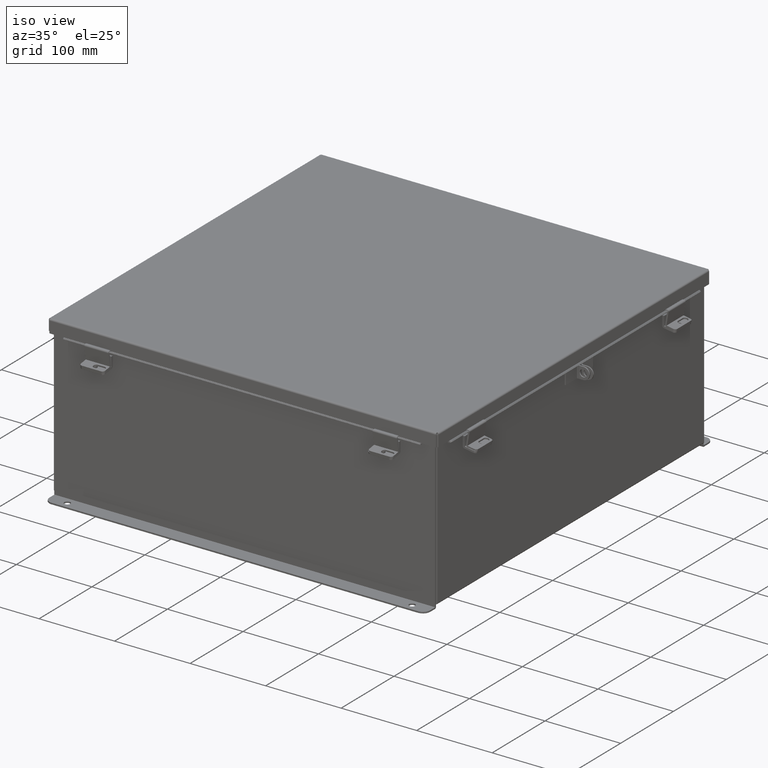
[diagram: clean part render]
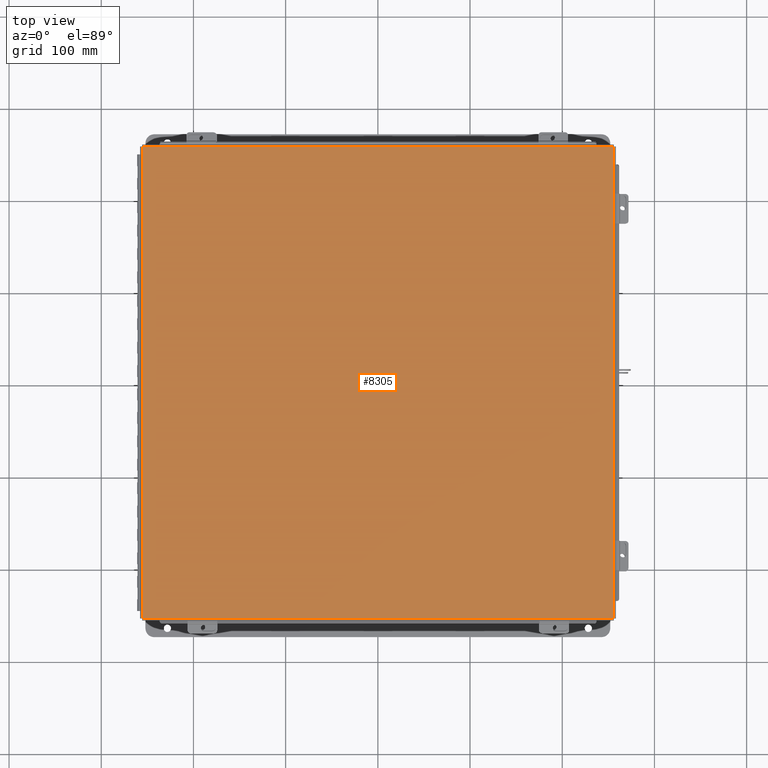
[diagram: tour spotlight — one face highlighted and labeled with its STEP entity id]
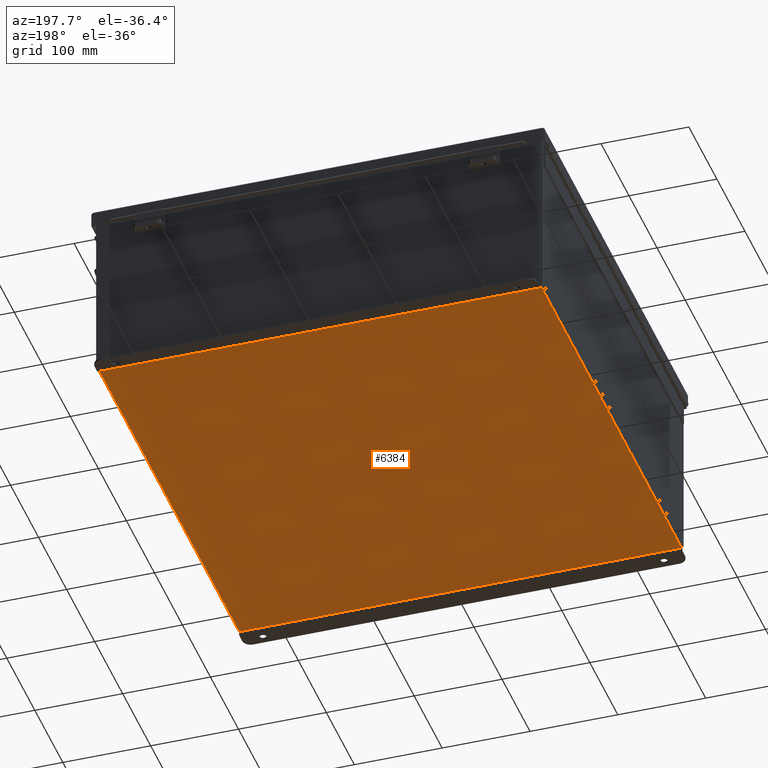
[diagram: tour spotlight — one face highlighted and labeled with its STEP entity id]
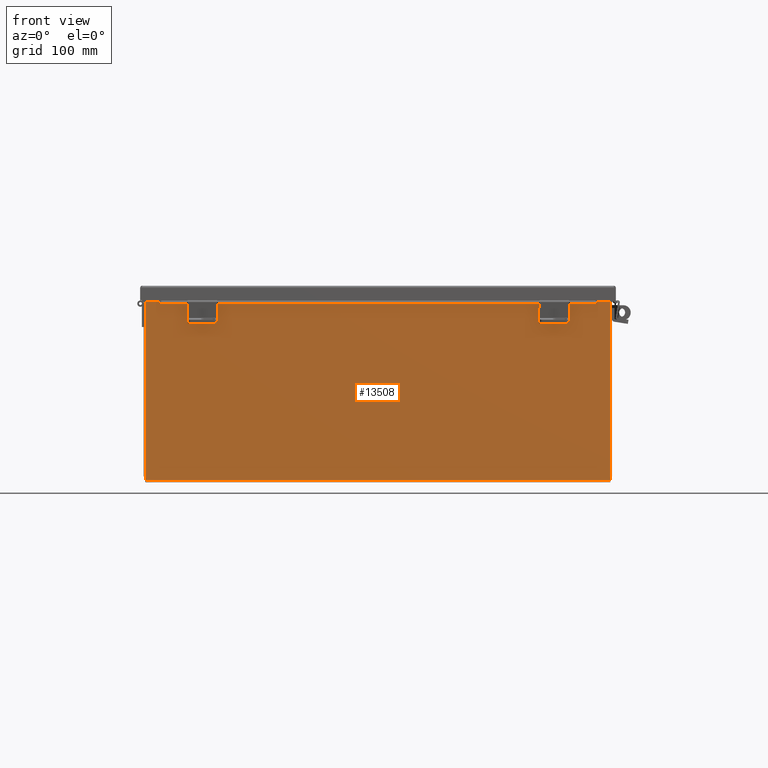
[diagram: tour spotlight — one face highlighted and labeled with its STEP entity id]
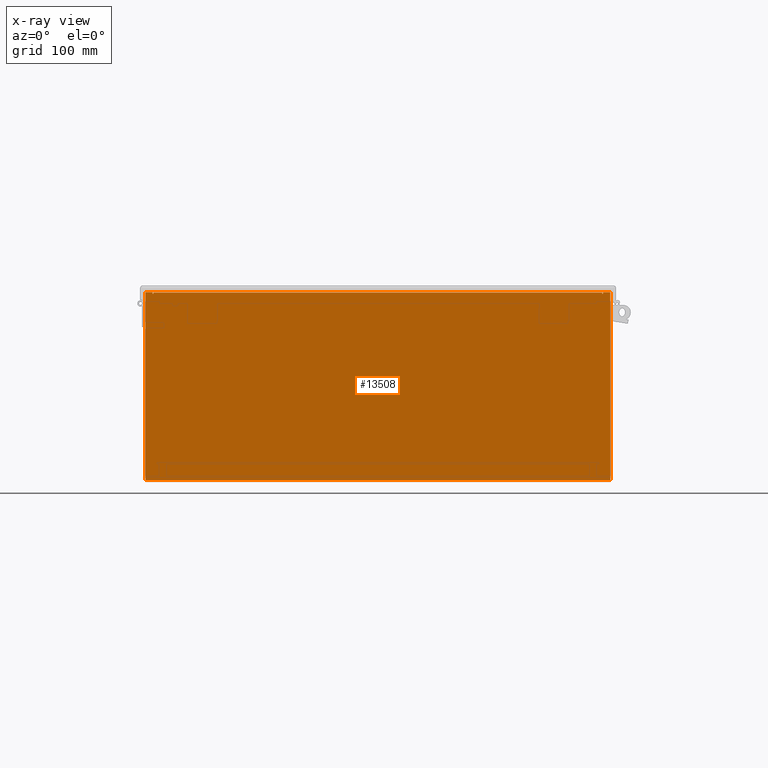
[diagram: x-ray of the same camera — body ghosted, this tour face saturated]
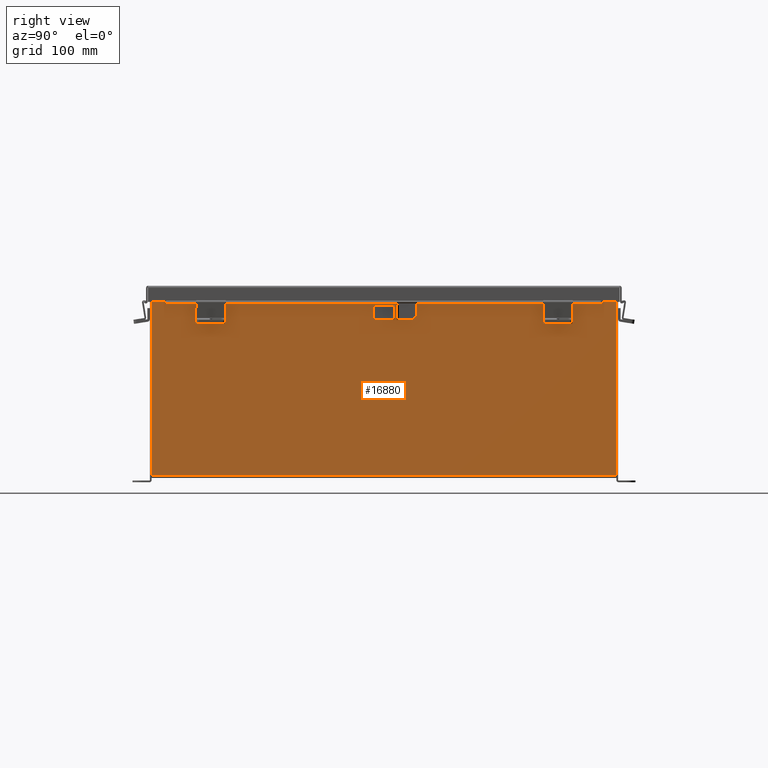
[diagram: tour spotlight — one face highlighted and labeled with its STEP entity id]
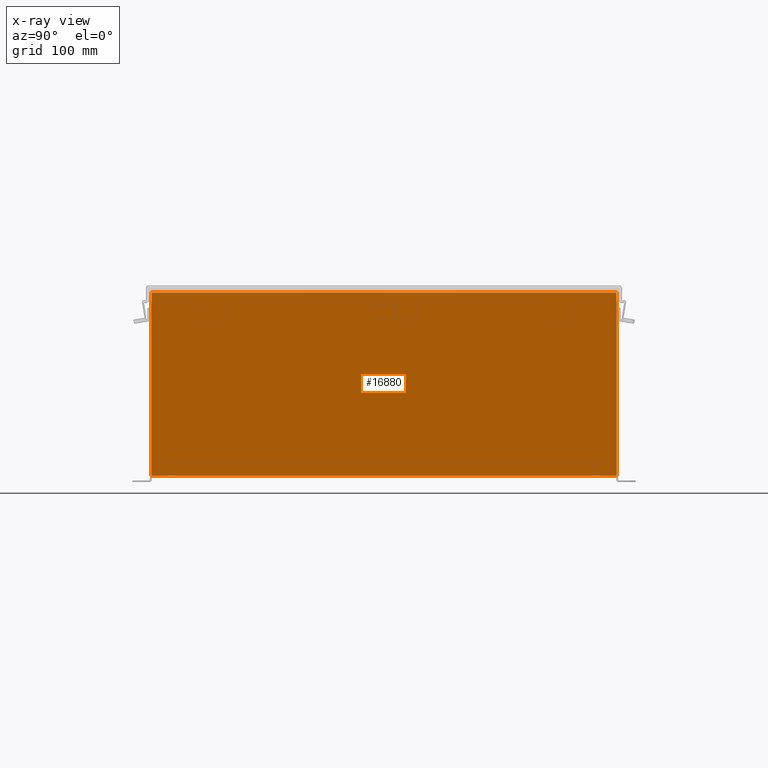
[diagram: x-ray of the same camera — body ghosted, this tour face saturated]
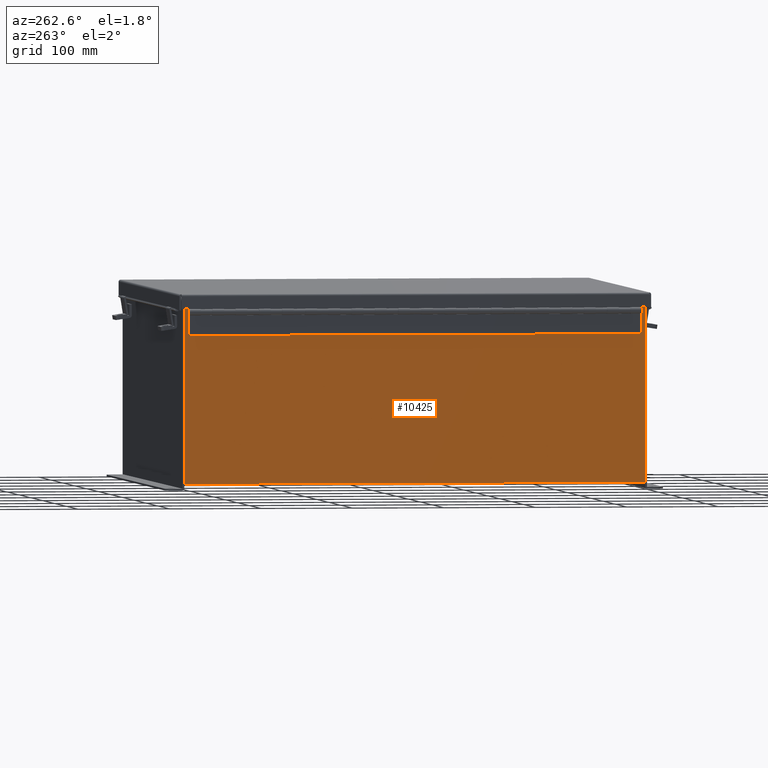
[diagram: tour spotlight — one face highlighted and labeled with its STEP entity id]
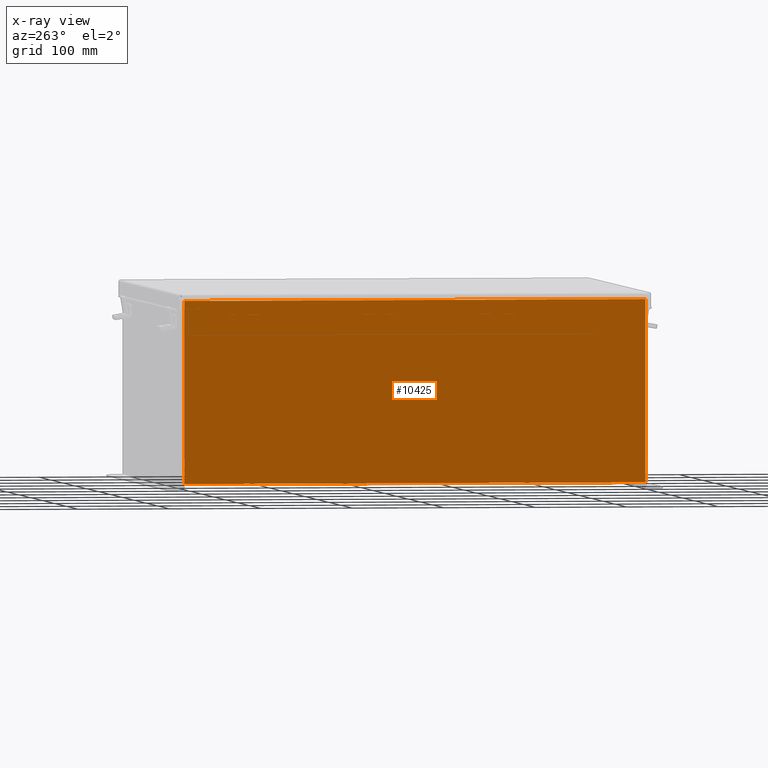
[diagram: x-ray of the same camera — body ghosted, this tour face saturated]
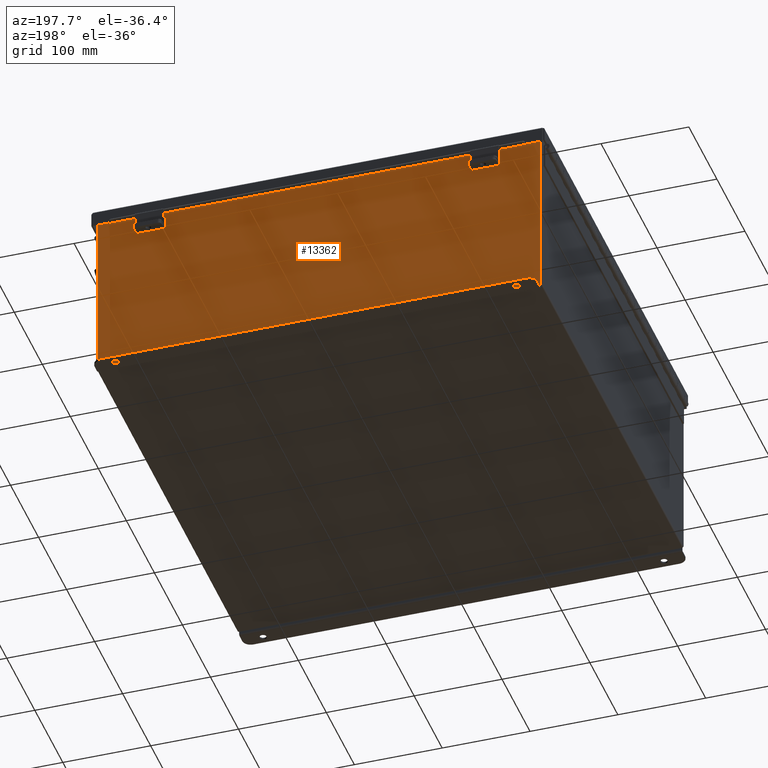
[diagram: tour spotlight — one face highlighted and labeled with its STEP entity id]
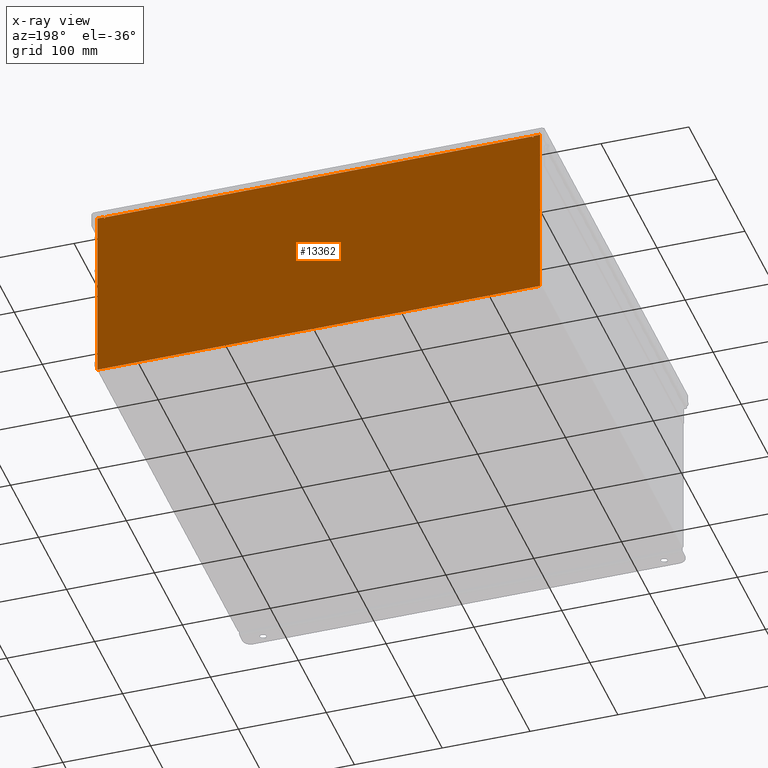
[diagram: x-ray of the same camera — body ghosted, this tour face saturated]
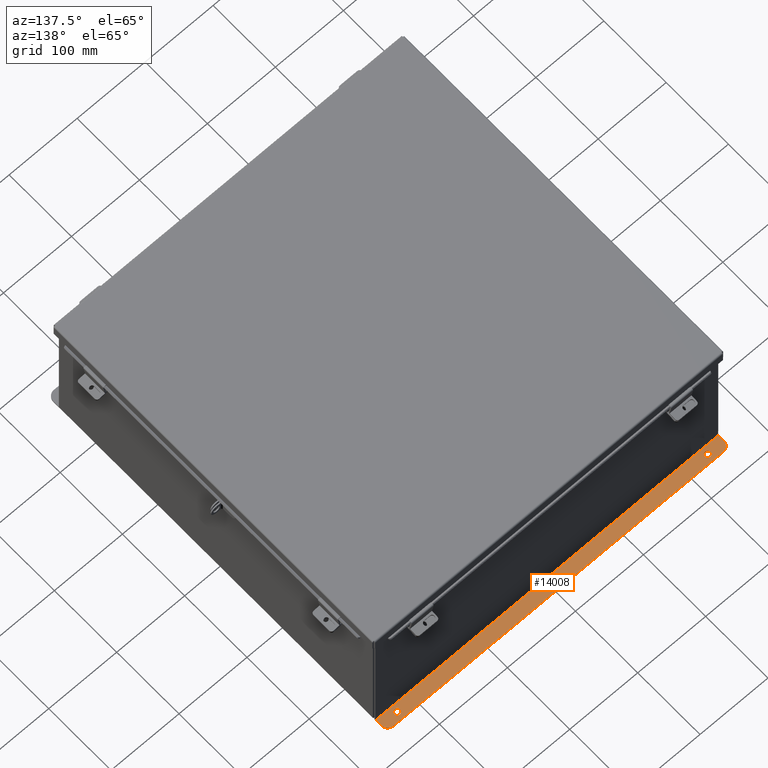
[diagram: tour spotlight — one face highlighted and labeled with its STEP entity id]
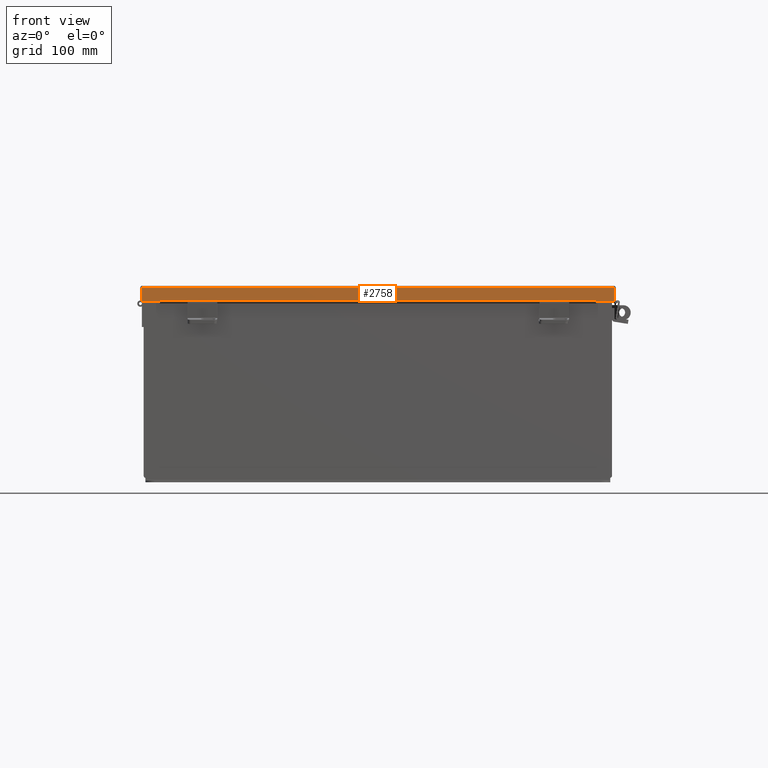
[diagram: tour spotlight — one face highlighted and labeled with its STEP entity id]
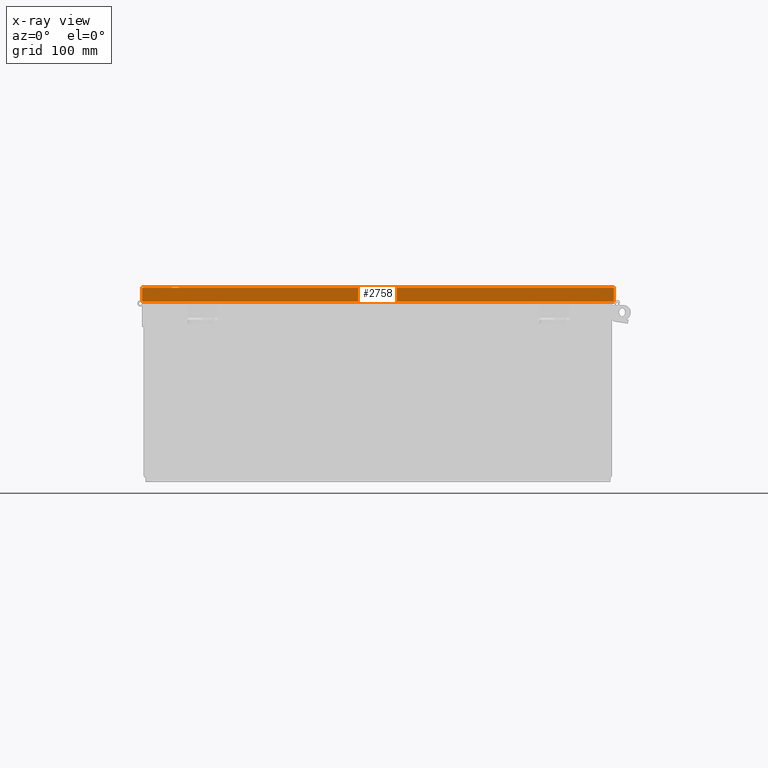
[diagram: x-ray of the same camera — body ghosted, this tour face saturated]
A machine part: a face-by-face anatomy tour. The part has 938 B-rep faces; the first image is the clean iso view, then the 8 largest visible faces are spotlighted one at a time (largest first), each with its STEP entity span.

Face 1 — top view, entity #8305. In plain terms, the highlighted planar face has unit normal (-0, -0, 1).
Definition (entity closure, byte-faithful):
#322 = VERTEX_POINT ( 'NONE', #7513 ) ;
#731 = CARTESIAN_POINT ( 'NONE',  ( 10.06855000000003600, -10.06854999999999700, -0.07469999999999797600 ) ) ;
#1072 = VECTOR ( 'NONE', #18738, 39.37007874015748100 ) ;
#1187 = VERTEX_POINT ( 'NONE', #4588 ) ;
#2454 = EDGE_CURVE ( 'NONE', #1187, #20471, #3774, .T. ) ;
#3424 = ORIENTED_EDGE ( 'NONE', *, *, #2454, .T. ) ;
#3774 = LINE ( 'NONE', #14207, #22175 ) ;
#4455 = EDGE_CURVE ( 'NONE', #20471, #16767, #14279, .T. ) ;
#4588 = CARTESIAN_POINT ( 'NONE',  ( 10.06855000000003600, 10.06854999999999800, -0.07470000000000015500 ) ) ;
#4774 = ORIENTED_EDGE ( 'NONE', *, *, #21852, .T. ) ;
#4990 = PLANE ( 'NONE',  #15252 ) ;
#5067 = DIRECTION ( 'NONE',  ( 5.938065620492508100E-059, -1.846427556282924300E-029, -1.000000000000000000 ) ) ;
#5300 = CARTESIAN_POINT ( 'NONE',  ( -10.06855000000003200, -10.07447893218813200, -0.07470000000000015500 ) ) ;
#6570 = ORIENTED_EDGE ( 'NONE', *, *, #4455, .T. ) ;
#7061 = DIRECTION ( 'NONE',  ( 3.166671605124525800E-030, 1.000000000000000000, 1.853823127269377700E-029 ) ) ;
#7513 = CARTESIAN_POINT ( 'NONE',  ( -10.06855000000003200, 10.06855000000000000, -0.07469999999999907300 ) ) ;
#7541 = DIRECTION ( 'NONE',  ( 1.000000000000000000, 3.215975411700707400E-030, -0.0000000000000000000 ) ) ;
#8305 = ADVANCED_FACE ( 'NONE', ( #21327 ), #4990, .T. ) ;
#9021 = DIRECTION ( 'NONE',  ( -3.166671605124525800E-030, -1.000000000000000000, -1.853823127269377700E-029 ) ) ;
#10499 = VECTOR ( 'NONE', #7541, 39.37007874015748100 ) ;
#13580 = CARTESIAN_POINT ( 'NONE',  ( -8.537024980200822600E-018, 0.0000000000000000000, -0.07470000000000015500 ) ) ;
#13708 = LINE ( 'NONE', #5300, #22415 ) ;
#14207 = CARTESIAN_POINT ( 'NONE',  ( 10.06855000000003600, 10.07447893218813400, -0.07470000000000015500 ) ) ;
#14279 = LINE ( 'NONE', #19932, #1072 ) ;
#14947 = ORIENTED_EDGE ( 'NONE', *, *, #21079, .T. ) ;
#15108 = LINE ( 'NONE', #17824, #10499 ) ;
#15252 = AXIS2_PLACEMENT_3D ( 'NONE', #13580, #5067, #17101 ) ;
#16254 = EDGE_LOOP ( 'NONE', ( #14947, #3424, #6570, #4774 ) ) ;
#16767 = VERTEX_POINT ( 'NONE', #19005 ) ;
#17101 = DIRECTION ( 'NONE',  ( -1.000000000000000000, -3.215975411700707400E-030, 0.0000000000000000000 ) ) ;
#17824 = CARTESIAN_POINT ( 'NONE',  ( -10.07447893218816600, 10.06855000000000000, -0.07469999999999907300 ) ) ;
#18738 = DIRECTION ( 'NONE',  ( -1.000000000000000000, -3.205297876175390800E-030, -8.208677865577550200E-017 ) ) ;
#19005 = CARTESIAN_POINT ( 'NONE',  ( -10.06855000000003200, -10.06854999999999700, -0.07470000000000015500 ) ) ;
#19932 = CARTESIAN_POINT ( 'NONE',  ( 10.07447893218817100, -10.06854999999999700, -0.07469999999999033000 ) ) ;
#20471 = VERTEX_POINT ( 'NONE', #731 ) ;
#21079 = EDGE_CURVE ( 'NONE', #322, #1187, #15108, .T. ) ;
#21327 = FACE_OUTER_BOUND ( 'NONE', #16254, .T. ) ;
#21852 = EDGE_CURVE ( 'NONE', #16767, #322, #13708, .T. ) ;
#22175 = VECTOR ( 'NONE', #9021, 39.37007874015748100 ) ;
#22415 = VECTOR ( 'NONE', #7061, 39.37007874015748100 ) ;

Face 2 — auxiliary view, entity #6384. In plain terms, the highlighted planar face has unit normal (0, 0, -1).
Definition (entity closure, byte-faithful):
#1007 = ORIENTED_EDGE ( 'NONE', *, *, #17000, .F. ) ;
#2424 = CARTESIAN_POINT ( 'NONE',  ( 9.912300000000001900, 9.925300000000001800, -0.07469999999999994700 ) ) ;
#2678 = VECTOR ( 'NONE', #14483, 39.37007874015748100 ) ;
#3236 = DIRECTION ( 'NONE',  ( 1.000000000000000000, 0.0000000000000000000, 0.0000000000000000000 ) ) ;
#3393 = VERTEX_POINT ( 'NONE', #21823 ) ;
#5244 = VECTOR ( 'NONE', #3236, 39.37007874015748100 ) ;
#5982 = CARTESIAN_POINT ( 'NONE',  ( -9.912299999999998300, -9.925299999999998200, -0.07469999999999994700 ) ) ;
#6139 = VERTEX_POINT ( 'NONE', #21989 ) ;
#6195 = LINE ( 'NONE', #5982, #14803 ) ;
#6296 = ORIENTED_EDGE ( 'NONE', *, *, #8644, .T. ) ;
#6384 = ADVANCED_FACE ( 'NONE', ( #9077 ), #20958, .T. ) ;
#7575 = CARTESIAN_POINT ( 'NONE',  ( -9.999999999999998200, 9.925300000000001800, -0.07470000000000000300 ) ) ;
#7728 = DIRECTION ( 'NONE',  ( -0.0000000000000000000, 1.000000000000000000, -0.0000000000000000000 ) ) ;
#8602 = EDGE_CURVE ( 'NONE', #11700, #6139, #16402, .T. ) ;
#8644 = EDGE_CURVE ( 'NONE', #18981, #3393, #6195, .T. ) ;
#8899 = CARTESIAN_POINT ( 'NONE',  ( 9.912300000000001900, 9.925299999999998200, -0.07469999999999994700 ) ) ;
#9028 = AXIS2_PLACEMENT_3D ( 'NONE', #15778, #21040, #10660 ) ;
#9077 = FACE_OUTER_BOUND ( 'NONE', #12414, .T. ) ;
#10342 = EDGE_CURVE ( 'NONE', #18981, #6139, #13870, .T. ) ;
#10660 = DIRECTION ( 'NONE',  ( -1.000000000000000000, 0.0000000000000000000, -0.0000000000000000000 ) ) ;
#11700 = VERTEX_POINT ( 'NONE', #8899 ) ;
#11839 = CARTESIAN_POINT ( 'NONE',  ( -9.999999999999998200, -9.925299999999998200, -0.07470000000000000300 ) ) ;
#12414 = EDGE_LOOP ( 'NONE', ( #1007, #14352, #18288, #6296 ) ) ;
#12515 = CARTESIAN_POINT ( 'NONE',  ( -9.912299999999998300, -9.925299999999992900, -0.07469999999999994700 ) ) ;
#13870 = LINE ( 'NONE', #11839, #5244 ) ;
#14352 = ORIENTED_EDGE ( 'NONE', *, *, #8602, .T. ) ;
#14483 = DIRECTION ( 'NONE',  ( -0.0000000000000000000, -1.000000000000000000, -0.0000000000000000000 ) ) ;
#14803 = VECTOR ( 'NONE', #7728, 39.37007874015748100 ) ;
#15778 = CARTESIAN_POINT ( 'NONE',  ( 0.0000000000000000000, 0.0000000000000000000, -0.07470000000000000300 ) ) ;
#16402 = LINE ( 'NONE', #2424, #2678 ) ;
#17000 = EDGE_CURVE ( 'NONE', #11700, #3393, #17766, .T. ) ;
#17766 = LINE ( 'NONE', #7575, #21889 ) ;
#17859 = DIRECTION ( 'NONE',  ( -1.000000000000000000, -0.0000000000000000000, -0.0000000000000000000 ) ) ;
#18288 = ORIENTED_EDGE ( 'NONE', *, *, #10342, .F. ) ;
#18981 = VERTEX_POINT ( 'NONE', #12515 ) ;
#20958 = PLANE ( 'NONE',  #9028 ) ;
#21040 = DIRECTION ( 'NONE',  ( 0.0000000000000000000, 0.0000000000000000000, -1.000000000000000000 ) ) ;
#21823 = CARTESIAN_POINT ( 'NONE',  ( -9.912299999999998300, 9.925300000000001800, -0.07470000000000000300 ) ) ;
#21889 = VECTOR ( 'NONE', #17859, 39.37007874015748100 ) ;
#21989 = CARTESIAN_POINT ( 'NONE',  ( 9.912300000000001900, -9.925299999999998200, -0.07470000000000000300 ) ) ;

Face 3 — front view, entity #13508. An x-ray twin of the same camera follows (body ghosted, this face saturated) — the face is partly hidden behind the body. In plain terms, the highlighted planar face has unit normal (-0, 1, -0).
Definition (entity closure, byte-faithful):
#193 = EDGE_CURVE ( 'NONE', #19745, #8973, #3011, .T. ) ;
#213 = VECTOR ( 'NONE', #21242, 39.37007874015748100 ) ;
#582 = CARTESIAN_POINT ( 'NONE',  ( 9.619650000000001800, 0.0000000000000000000, 3.874949999999998300 ) ) ;
#964 = EDGE_CURVE ( 'NONE', #5872, #4170, #5437, .T. ) ;
#1022 = CARTESIAN_POINT ( 'NONE',  ( -9.619649999999996500, -1.748382715945128500E-014, 3.874949999999996100 ) ) ;
#1125 = LINE ( 'NONE', #11447, #18937 ) ;
#1163 = EDGE_CURVE ( 'NONE', #19745, #20478, #1125, .T. ) ;
#2122 = CARTESIAN_POINT ( 'NONE',  ( -9.600974999999998300, -1.748382715945128500E-014, 3.874949999999996100 ) ) ;
#2182 = VERTEX_POINT ( 'NONE', #8492 ) ;
#2256 = CARTESIAN_POINT ( 'NONE',  ( -9.619649999999998300, -1.748382715945128500E-014, 3.925299999999999600 ) ) ;
#2385 = EDGE_CURVE ( 'NONE', #20478, #15241, #19151, .T. ) ;
#2464 = VECTOR ( 'NONE', #20909, 39.37007874015748100 ) ;
#2813 = VERTEX_POINT ( 'NONE', #5482 ) ;
#3011 = LINE ( 'NONE', #10537, #2464 ) ;
#3300 = ORIENTED_EDGE ( 'NONE', *, *, #14612, .T. ) ;
#3414 = VECTOR ( 'NONE', #21565, 39.37007874015748100 ) ;
#3427 = ORIENTED_EDGE ( 'NONE', *, *, #5581, .F. ) ;
#3548 = ORIENTED_EDGE ( 'NONE', *, *, #964, .F. ) ;
#3859 = DIRECTION ( 'NONE',  ( 0.0000000000000000000, 0.0000000000000000000, -1.000000000000000000 ) ) ;
#3907 = PLANE ( 'NONE',  #8735 ) ;
#4136 = CARTESIAN_POINT ( 'NONE',  ( -9.582299999999998300, -1.311287036958846300E-014, 3.912299999999997400 ) ) ;
#4170 = VERTEX_POINT ( 'NONE', #9940 ) ;
#4682 = EDGE_CURVE ( 'NONE', #2182, #8973, #4846, .T. ) ;
#4846 = LINE ( 'NONE', #10880, #213 ) ;
#5253 = LINE ( 'NONE', #4136, #13877 ) ;
#5437 = CIRCLE ( 'NONE', #17278, 0.01867500000000003900 ) ;
#5482 = CARTESIAN_POINT ( 'NONE',  ( -9.582299999999998300, -1.311287036958846300E-014, 3.912299999999997400 ) ) ;
#5581 = EDGE_CURVE ( 'NONE', #10120, #6620, #19667, .T. ) ;
#5605 = VERTEX_POINT ( 'NONE', #7349 ) ;
#5636 = DIRECTION ( 'NONE',  ( 0.0000000000000000000, 0.0000000000000000000, -1.000000000000000000 ) ) ;
#5677 = DIRECTION ( 'NONE',  ( -4.340572780399863600E-014, 0.0000000000000000000, -1.000000000000000000 ) ) ;
#5686 = AXIS2_PLACEMENT_3D ( 'NONE', #2122, #14172, #3859 ) ;
#5833 = LINE ( 'NONE', #17179, #14460 ) ;
#5871 = ORIENTED_EDGE ( 'NONE', *, *, #4682, .T. ) ;
#5872 = VERTEX_POINT ( 'NONE', #582 ) ;
#5876 = DIRECTION ( 'NONE',  ( 1.000000000000000000, 4.910036603141682400E-031, -0.0000000000000000000 ) ) ;
#6349 = ORIENTED_EDGE ( 'NONE', *, *, #19802, .F. ) ;
#6620 = VERTEX_POINT ( 'NONE', #1022 ) ;
#6628 = EDGE_CURVE ( 'NONE', #15679, #2182, #13885, .T. ) ;
#7349 = CARTESIAN_POINT ( 'NONE',  ( 9.582300000000001800, 0.0000000000000000000, 3.912299999999997400 ) ) ;
#7362 = VECTOR ( 'NONE', #5677, 39.37007874015748100 ) ;
#7560 = CARTESIAN_POINT ( 'NONE',  ( -9.925299999999996500, -2.185478394931410600E-015, -4.099300000000003900 ) ) ;
#7994 = CARTESIAN_POINT ( 'NONE',  ( -9.925299999999998200, -1.748382715945128500E-014, 3.925299999999998700 ) ) ;
#8048 = LINE ( 'NONE', #11108, #3414 ) ;
#8492 = CARTESIAN_POINT ( 'NONE',  ( 9.925300000000000000, 0.0000000000000000000, 3.925300000000000900 ) ) ;
#8735 = AXIS2_PLACEMENT_3D ( 'NONE', #12490, #19385, #5636 ) ;
#8973 = VERTEX_POINT ( 'NONE', #11424 ) ;
#9108 = DIRECTION ( 'NONE',  ( 4.910036603141682400E-031, 1.000000000000000000, -0.0000000000000000000 ) ) ;
#9824 = EDGE_CURVE ( 'NONE', #6620, #15241, #5833, .T. ) ;
#9909 = ORIENTED_EDGE ( 'NONE', *, *, #19515, .F. ) ;
#9940 = CARTESIAN_POINT ( 'NONE',  ( 9.582300000000000000, 0.0000000000000000000, 3.874949999999998300 ) ) ;
#10120 = VERTEX_POINT ( 'NONE', #21469 ) ;
#10198 = DIRECTION ( 'NONE',  ( 0.0000000000000000000, 0.0000000000000000000, 1.000000000000000000 ) ) ;
#10507 = CARTESIAN_POINT ( 'NONE',  ( -9.925299999999998200, -1.748382715945128500E-014, 3.925299999999998700 ) ) ;
#10537 = CARTESIAN_POINT ( 'NONE',  ( -9.925299999999998200, -2.185478394931410600E-015, -4.099300000000003900 ) ) ;
#10804 = CARTESIAN_POINT ( 'NONE',  ( 9.619649999999833100, 0.0000000000000000000, -4.179727430306322700E-013 ) ) ;
#10880 = CARTESIAN_POINT ( 'NONE',  ( 9.925300000000000000, 0.0000000000000000000, 3.925300000000000900 ) ) ;
#11108 = CARTESIAN_POINT ( 'NONE',  ( 9.582300000000001800, 0.0000000000000000000, -4.370956789862821100E-015 ) ) ;
#11280 = EDGE_LOOP ( 'NONE', ( #18285, #3427, #9909, #3300, #14508, #3548, #6349, #17015, #5871, #12456, #12845, #19236 ) ) ;
#11371 = DIRECTION ( 'NONE',  ( 1.000000000000000000, 4.910036603141682400E-031, 0.0000000000000000000 ) ) ;
#11424 = CARTESIAN_POINT ( 'NONE',  ( 9.925299999999998200, 1.748382715945128500E-014, -4.099299999999999500 ) ) ;
#11447 = CARTESIAN_POINT ( 'NONE',  ( -9.925299999999998200, -1.748382715945128500E-014, 3.925299999999998700 ) ) ;
#11918 = LINE ( 'NONE', #10804, #7362 ) ;
#12456 = ORIENTED_EDGE ( 'NONE', *, *, #193, .F. ) ;
#12490 = CARTESIAN_POINT ( 'NONE',  ( 0.0000000000000000000, 0.0000000000000000000, 0.0000000000000000000 ) ) ;
#12845 = ORIENTED_EDGE ( 'NONE', *, *, #1163, .T. ) ;
#13508 = ADVANCED_FACE ( 'NONE', ( #15256 ), #3907, .F. ) ;
#13835 = CARTESIAN_POINT ( 'NONE',  ( -9.582299999999998300, 0.0000000000000000000, 0.0000000000000000000 ) ) ;
#13877 = VECTOR ( 'NONE', #5876, 39.37007874015748100 ) ;
#13885 = LINE ( 'NONE', #7994, #18514 ) ;
#13974 = EDGE_CURVE ( 'NONE', #4170, #5605, #8048, .T. ) ;
#14172 = DIRECTION ( 'NONE',  ( 4.910036603141682400E-031, 1.000000000000000000, -0.0000000000000000000 ) ) ;
#14460 = VECTOR ( 'NONE', #10198, 39.37007874015748100 ) ;
#14508 = ORIENTED_EDGE ( 'NONE', *, *, #13974, .F. ) ;
#14612 = EDGE_CURVE ( 'NONE', #2813, #5605, #5253, .T. ) ;
#15241 = VERTEX_POINT ( 'NONE', #2256 ) ;
#15256 = FACE_OUTER_BOUND ( 'NONE', #11280, .T. ) ;
#15679 = VERTEX_POINT ( 'NONE', #22350 ) ;
#17015 = ORIENTED_EDGE ( 'NONE', *, *, #6628, .T. ) ;
#17179 = CARTESIAN_POINT ( 'NONE',  ( -9.619649999999998300, 0.0000000000000000000, 0.0000000000000000000 ) ) ;
#17278 = AXIS2_PLACEMENT_3D ( 'NONE', #19446, #9108, #21196 ) ;
#17301 = LINE ( 'NONE', #13835, #21427 ) ;
#18285 = ORIENTED_EDGE ( 'NONE', *, *, #9824, .F. ) ;
#18514 = VECTOR ( 'NONE', #11371, 39.37007874015748100 ) ;
#18624 = VECTOR ( 'NONE', #20803, 39.37007874015748100 ) ;
#18937 = VECTOR ( 'NONE', #21818, 39.37007874015748100 ) ;
#19151 = LINE ( 'NONE', #10507, #18624 ) ;
#19236 = ORIENTED_EDGE ( 'NONE', *, *, #2385, .T. ) ;
#19385 = DIRECTION ( 'NONE',  ( -4.910036603141682400E-031, -1.000000000000000000, -0.0000000000000000000 ) ) ;
#19446 = CARTESIAN_POINT ( 'NONE',  ( 9.600975000000000000, 0.0000000000000000000, 3.874949999999998300 ) ) ;
#19515 = EDGE_CURVE ( 'NONE', #2813, #10120, #17301, .T. ) ;
#19667 = CIRCLE ( 'NONE', #5686, 0.01867500000000003900 ) ;
#19745 = VERTEX_POINT ( 'NONE', #7560 ) ;
#19802 = EDGE_CURVE ( 'NONE', #15679, #5872, #11918, .T. ) ;
#20478 = VERTEX_POINT ( 'NONE', #21459 ) ;
#20751 = DIRECTION ( 'NONE',  ( 0.0000000000000000000, 0.0000000000000000000, -1.000000000000000000 ) ) ;
#20803 = DIRECTION ( 'NONE',  ( 1.000000000000000000, 4.910036603141682400E-031, 0.0000000000000000000 ) ) ;
#20909 = DIRECTION ( 'NONE',  ( 1.000000000000000000, 8.208677865577687000E-017, -0.0000000000000000000 ) ) ;
#21196 = DIRECTION ( 'NONE',  ( 0.0000000000000000000, 0.0000000000000000000, -1.000000000000000000 ) ) ;
#21242 = DIRECTION ( 'NONE',  ( -2.783836133456566600E-016, 0.0000000000000000000, -1.000000000000000000 ) ) ;
#21427 = VECTOR ( 'NONE', #20751, 39.37007874015748100 ) ;
#21459 = CARTESIAN_POINT ( 'NONE',  ( -9.925299999999998200, -1.748382715945128500E-014, 3.925299999999998700 ) ) ;
#21469 = CARTESIAN_POINT ( 'NONE',  ( -9.582299999999998300, -1.748382715945128500E-014, 3.874949999999998300 ) ) ;
#21565 = DIRECTION ( 'NONE',  ( 0.0000000000000000000, 0.0000000000000000000, 1.000000000000000000 ) ) ;
#21818 = DIRECTION ( 'NONE',  ( 0.0000000000000000000, 0.0000000000000000000, 1.000000000000000000 ) ) ;
#22350 = CARTESIAN_POINT ( 'NONE',  ( 9.619650000000003600, 0.0000000000000000000, 3.925299999999999600 ) ) ;

Face 4 — right view, entity #16880. An x-ray twin of the same camera follows (body ghosted, this face saturated) — the face is partly hidden behind the body. In plain terms, the highlighted planar face has unit normal (-1, 0, 0).
Definition (entity closure, byte-faithful):
#77 = CARTESIAN_POINT ( 'NONE',  ( 10.00000000000003000, 9.925299999999998200, 7.837599999999999200 ) ) ;
#236 = LINE ( 'NONE', #14523, #9466 ) ;
#1148 = AXIS2_PLACEMENT_3D ( 'NONE', #7259, #15891, #5573 ) ;
#1312 = LINE ( 'NONE', #16231, #13963 ) ;
#2071 = VERTEX_POINT ( 'NONE', #15120 ) ;
#3845 = PLANE ( 'NONE',  #1148 ) ;
#4186 = DIRECTION ( 'NONE',  ( 3.618986973493534200E-015, -2.783836133456565100E-016, 1.000000000000000000 ) ) ;
#4611 = LINE ( 'NONE', #77, #5125 ) ;
#5125 = VECTOR ( 'NONE', #5231, 39.37007874015748100 ) ;
#5231 = DIRECTION ( 'NONE',  ( -0.0000000000000000000, -1.000000000000000000, -0.0000000000000000000 ) ) ;
#5573 = DIRECTION ( 'NONE',  ( 3.618986973493534200E-015, 0.0000000000000000000, 1.000000000000000000 ) ) ;
#5929 = DIRECTION ( 'NONE',  ( -0.0000000000000000000, -1.000000000000000000, -0.0000000000000000000 ) ) ;
#6079 = ORIENTED_EDGE ( 'NONE', *, *, #21108, .T. ) ;
#7076 = CARTESIAN_POINT ( 'NONE',  ( 10.00000000000000200, -9.925299999999998200, -3.645309666545751000E-014 ) ) ;
#7259 = CARTESIAN_POINT ( 'NONE',  ( 10.00000000000000200, 0.0000000000000000000, -3.645309666545751000E-014 ) ) ;
#7446 = ORIENTED_EDGE ( 'NONE', *, *, #22096, .F. ) ;
#7891 = LINE ( 'NONE', #7076, #21100 ) ;
#8799 = DIRECTION ( 'NONE',  ( -3.618986973493534200E-015, 0.0000000000000000000, -1.000000000000000000 ) ) ;
#9466 = VECTOR ( 'NONE', #4186, 39.37007874015748100 ) ;
#10108 = EDGE_LOOP ( 'NONE', ( #16778, #19875, #7446, #6079 ) ) ;
#12917 = CARTESIAN_POINT ( 'NONE',  ( 10.00000000000000200, 9.925299999999998200, 0.01299999999999982600 ) ) ;
#13963 = VECTOR ( 'NONE', #5929, 39.37007874015748100 ) ;
#14523 = CARTESIAN_POINT ( 'NONE',  ( 10.00000000000000200, 9.925300000000001800, -3.368710057187244300E-014 ) ) ;
#14826 = FACE_OUTER_BOUND ( 'NONE', #10108, .T. ) ;
#15120 = CARTESIAN_POINT ( 'NONE',  ( 10.00000000000000200, -9.925299999999998200, 0.01299999999999984300 ) ) ;
#15745 = VERTEX_POINT ( 'NONE', #18979 ) ;
#15797 = EDGE_CURVE ( 'NONE', #15745, #2071, #7891, .T. ) ;
#15891 = DIRECTION ( 'NONE',  ( -1.000000000000000000, 0.0000000000000000000, 3.618986973493534200E-015 ) ) ;
#16231 = CARTESIAN_POINT ( 'NONE',  ( 10.00000000000000200, -9.925299999999998200, 0.01299999999999982600 ) ) ;
#16305 = VERTEX_POINT ( 'NONE', #22189 ) ;
#16778 = ORIENTED_EDGE ( 'NONE', *, *, #20875, .T. ) ;
#16880 = ADVANCED_FACE ( 'NONE', ( #14826 ), #3845, .F. ) ;
#18979 = CARTESIAN_POINT ( 'NONE',  ( 10.00000000000003000, -9.925299999999998200, 7.837599999999999200 ) ) ;
#19875 = ORIENTED_EDGE ( 'NONE', *, *, #15797, .T. ) ;
#20875 = EDGE_CURVE ( 'NONE', #16305, #15745, #4611, .T. ) ;
#21100 = VECTOR ( 'NONE', #8799, 39.37007874015748100 ) ;
#21108 = EDGE_CURVE ( 'NONE', #22147, #16305, #236, .T. ) ;
#22096 = EDGE_CURVE ( 'NONE', #22147, #2071, #1312, .T. ) ;
#22147 = VERTEX_POINT ( 'NONE', #12917 ) ;
#22189 = CARTESIAN_POINT ( 'NONE',  ( 10.00000000000003000, 9.925299999999996500, 7.837599999999999200 ) ) ;

Face 5 — auxiliary view, entity #10425. An x-ray twin of the same camera follows (body ghosted, this face saturated) — the face is partly hidden behind the body. In plain terms, the highlighted planar face has unit normal (1, 0, 0).
Definition (entity closure, byte-faithful):
#1548 = LINE ( 'NONE', #21621, #5580 ) ;
#1662 = EDGE_CURVE ( 'NONE', #8028, #22335, #9211, .T. ) ;
#2018 = DIRECTION ( 'NONE',  ( -0.0000000000000000000, 1.000000000000000000, -0.0000000000000000000 ) ) ;
#2547 = CARTESIAN_POINT ( 'NONE',  ( -10.00000000000002700, -9.925299999999991100, 7.837599999999999200 ) ) ;
#3071 = EDGE_LOOP ( 'NONE', ( #16848, #18422, #3166, #4287 ) ) ;
#3164 = CARTESIAN_POINT ( 'NONE',  ( -9.999999999999998200, -9.925299999999998200, -3.368710057187244300E-014 ) ) ;
#3166 = ORIENTED_EDGE ( 'NONE', *, *, #19619, .F. ) ;
#3676 = PLANE ( 'NONE',  #7709 ) ;
#3999 = EDGE_CURVE ( 'NONE', #22335, #7480, #1548, .T. ) ;
#4287 = ORIENTED_EDGE ( 'NONE', *, *, #10324, .T. ) ;
#4856 = CARTESIAN_POINT ( 'NONE',  ( -10.00000000000002700, 9.925300000000001800, 7.837599999999999200 ) ) ;
#5395 = DIRECTION ( 'NONE',  ( 1.000000000000000000, 0.0000000000000000000, 3.618986973493534200E-015 ) ) ;
#5580 = VECTOR ( 'NONE', #7804, 39.37007874015748100 ) ;
#5811 = VECTOR ( 'NONE', #15211, 39.37007874015748100 ) ;
#7480 = VERTEX_POINT ( 'NONE', #9363 ) ;
#7709 = AXIS2_PLACEMENT_3D ( 'NONE', #15712, #5395, #17460 ) ;
#7804 = DIRECTION ( 'NONE',  ( 3.618986973493534200E-015, 0.0000000000000000000, -1.000000000000000000 ) ) ;
#7839 = CARTESIAN_POINT ( 'NONE',  ( -10.00000000000002700, -9.925299999999992900, 7.837599999999999200 ) ) ;
#8028 = VERTEX_POINT ( 'NONE', #2547 ) ;
#9211 = LINE ( 'NONE', #7839, #14313 ) ;
#9363 = CARTESIAN_POINT ( 'NONE',  ( -9.999999999999998200, 9.925300000000001800, 0.01299999999999984300 ) ) ;
#10324 = EDGE_CURVE ( 'NONE', #15777, #8028, #14437, .T. ) ;
#10425 = ADVANCED_FACE ( 'NONE', ( #12253 ), #3676, .F. ) ;
#10440 = CARTESIAN_POINT ( 'NONE',  ( -9.999999999999998200, -9.925299999999992900, 0.01299999999999982600 ) ) ;
#10679 = CARTESIAN_POINT ( 'NONE',  ( -9.999999999999998200, 9.925300000000001800, 0.01299999999999982600 ) ) ;
#12253 = FACE_OUTER_BOUND ( 'NONE', #3071, .T. ) ;
#14313 = VECTOR ( 'NONE', #21653, 39.37007874015748100 ) ;
#14437 = LINE ( 'NONE', #3164, #5811 ) ;
#15171 = LINE ( 'NONE', #10679, #19805 ) ;
#15211 = DIRECTION ( 'NONE',  ( -3.618986973493534200E-015, 2.783836133456565100E-016, 1.000000000000000000 ) ) ;
#15712 = CARTESIAN_POINT ( 'NONE',  ( -9.999999999999998200, 0.0000000000000000000, -3.645309666545751000E-014 ) ) ;
#15777 = VERTEX_POINT ( 'NONE', #10440 ) ;
#16848 = ORIENTED_EDGE ( 'NONE', *, *, #1662, .T. ) ;
#17460 = DIRECTION ( 'NONE',  ( 3.618986973493534200E-015, 0.0000000000000000000, -1.000000000000000000 ) ) ;
#18422 = ORIENTED_EDGE ( 'NONE', *, *, #3999, .T. ) ;
#19619 = EDGE_CURVE ( 'NONE', #15777, #7480, #15171, .T. ) ;
#19805 = VECTOR ( 'NONE', #2018, 39.37007874015748100 ) ;
#21621 = CARTESIAN_POINT ( 'NONE',  ( -9.999999999999998200, 9.925300000000001800, -3.645309666545751000E-014 ) ) ;
#21653 = DIRECTION ( 'NONE',  ( 0.0000000000000000000, 1.000000000000000000, 0.0000000000000000000 ) ) ;
#22335 = VERTEX_POINT ( 'NONE', #4856 ) ;

Face 6 — auxiliary view, entity #13362. An x-ray twin of the same camera follows (body ghosted, this face saturated) — the face is partly hidden behind the body. In plain terms, the highlighted planar face has unit normal (0, -1, 0).
Definition (entity closure, byte-faithful):
#341 = CARTESIAN_POINT ( 'NONE',  ( 9.619649999999829500, 0.0000000000000000000, -4.174263734318994100E-013 ) ) ;
#394 = ORIENTED_EDGE ( 'NONE', *, *, #6400, .T. ) ;
#553 = ORIENTED_EDGE ( 'NONE', *, *, #15530, .F. ) ;
#768 = DIRECTION ( 'NONE',  ( 1.000000000000000000, 0.0000000000000000000, 0.0000000000000000000 ) ) ;
#784 = CARTESIAN_POINT ( 'NONE',  ( 9.925299999999998200, 0.0000000000000000000, 3.925299999999999600 ) ) ;
#797 = CARTESIAN_POINT ( 'NONE',  ( -9.925300000000000000, -2.185478394931410600E-015, -4.099300000000000400 ) ) ;
#1010 = VERTEX_POINT ( 'NONE', #4047 ) ;
#1077 = VECTOR ( 'NONE', #15457, 39.37007874015748100 ) ;
#1336 = EDGE_CURVE ( 'NONE', #22393, #18502, #20314, .T. ) ;
#1622 = VECTOR ( 'NONE', #17193, 39.37007874015748100 ) ;
#1671 = VECTOR ( 'NONE', #768, 39.37007874015748100 ) ;
#1687 = ORIENTED_EDGE ( 'NONE', *, *, #1336, .T. ) ;
#1724 = PLANE ( 'NONE',  #16073 ) ;
#2451 = EDGE_LOOP ( 'NONE', ( #553, #10972, #10475, #13146, #7745, #12369, #13370, #1687, #20304, #4822, #394, #14390 ) ) ;
#2957 = VERTEX_POINT ( 'NONE', #7638 ) ;
#3462 = CARTESIAN_POINT ( 'NONE',  ( 0.0000000000000000000, 0.0000000000000000000, 0.0000000000000000000 ) ) ;
#3955 = VERTEX_POINT ( 'NONE', #21460 ) ;
#4047 = CARTESIAN_POINT ( 'NONE',  ( 9.582299999999996500, 0.0000000000000000000, 3.874949999999997500 ) ) ;
#4081 = VECTOR ( 'NONE', #20028, 39.37007874015748100 ) ;
#4251 = CARTESIAN_POINT ( 'NONE',  ( -9.925300000000001800, 0.0000000000000000000, 3.925299999999999600 ) ) ;
#4680 = CARTESIAN_POINT ( 'NONE',  ( -9.619650000000003600, 0.0000000000000000000, 0.0000000000000000000 ) ) ;
#4822 = ORIENTED_EDGE ( 'NONE', *, *, #15406, .F. ) ;
#4930 = VERTEX_POINT ( 'NONE', #18490 ) ;
#5145 = CARTESIAN_POINT ( 'NONE',  ( -9.582300000000003600, 4.370956789862821100E-015, 3.912299999999998800 ) ) ;
#5408 = EDGE_CURVE ( 'NONE', #18202, #16423, #17740, .T. ) ;
#5629 = CIRCLE ( 'NONE', #22435, 0.01867500000000003900 ) ;
#6018 = DIRECTION ( 'NONE',  ( 0.0000000000000000000, 0.0000000000000000000, -1.000000000000000000 ) ) ;
#6400 = EDGE_CURVE ( 'NONE', #17648, #3955, #17684, .T. ) ;
#6419 = VECTOR ( 'NONE', #14150, 39.37007874015748100 ) ;
#6444 = LINE ( 'NONE', #784, #14517 ) ;
#6530 = VECTOR ( 'NONE', #20240, 39.37007874015748100 ) ;
#6992 = CARTESIAN_POINT ( 'NONE',  ( -9.619650000000003600, 0.0000000000000000000, 3.925299999999999600 ) ) ;
#7105 = EDGE_CURVE ( 'NONE', #2957, #1010, #14981, .T. ) ;
#7304 = DIRECTION ( 'NONE',  ( -0.0000000000000000000, -0.0000000000000000000, 1.000000000000000000 ) ) ;
#7410 = DIRECTION ( 'NONE',  ( -0.0000000000000000000, 1.000000000000000000, -0.0000000000000000000 ) ) ;
#7638 = CARTESIAN_POINT ( 'NONE',  ( 9.619649999999996500, 0.0000000000000000000, 3.874949999999997500 ) ) ;
#7745 = ORIENTED_EDGE ( 'NONE', *, *, #16433, .F. ) ;
#7886 = CARTESIAN_POINT ( 'NONE',  ( -9.925300000000001800, -2.185478394931410600E-015, -4.099300000000000400 ) ) ;
#8675 = DIRECTION ( 'NONE',  ( 0.0000000000000000000, -1.000000000000000000, 0.0000000000000000000 ) ) ;
#9152 = CARTESIAN_POINT ( 'NONE',  ( 9.600974999999996500, 0.0000000000000000000, 3.874949999999997500 ) ) ;
#9365 = EDGE_CURVE ( 'NONE', #22393, #2957, #10982, .T. ) ;
#10265 = CARTESIAN_POINT ( 'NONE',  ( -9.582300000000003600, 0.0000000000000000000, 0.0000000000000000000 ) ) ;
#10341 = CARTESIAN_POINT ( 'NONE',  ( -9.582300000000003600, 0.0000000000000000000, 3.874949999999997500 ) ) ;
#10475 = ORIENTED_EDGE ( 'NONE', *, *, #5408, .F. ) ;
#10784 = LINE ( 'NONE', #20708, #1077 ) ;
#10874 = DIRECTION ( 'NONE',  ( 0.0000000000000000000, 0.0000000000000000000, -1.000000000000000000 ) ) ;
#10972 = ORIENTED_EDGE ( 'NONE', *, *, #16932, .F. ) ;
#10982 = LINE ( 'NONE', #341, #6419 ) ;
#11109 = VECTOR ( 'NONE', #15542, 39.37007874015748100 ) ;
#12020 = VERTEX_POINT ( 'NONE', #22043 ) ;
#12265 = EDGE_CURVE ( 'NONE', #18502, #17423, #6444, .T. ) ;
#12369 = ORIENTED_EDGE ( 'NONE', *, *, #7105, .F. ) ;
#12840 = CARTESIAN_POINT ( 'NONE',  ( 9.925299999999998200, 0.0000000000000000000, 3.925299999999999600 ) ) ;
#13124 = VECTOR ( 'NONE', #7304, 39.37007874015748100 ) ;
#13146 = ORIENTED_EDGE ( 'NONE', *, *, #16416, .T. ) ;
#13362 = ADVANCED_FACE ( 'NONE', ( #18521 ), #1724, .F. ) ;
#13370 = ORIENTED_EDGE ( 'NONE', *, *, #9365, .F. ) ;
#13728 = DIRECTION ( 'NONE',  ( 0.0000000000000000000, 0.0000000000000000000, -1.000000000000000000 ) ) ;
#14124 = CARTESIAN_POINT ( 'NONE',  ( -9.925300000000001800, 0.0000000000000000000, 3.925299999999999600 ) ) ;
#14150 = DIRECTION ( 'NONE',  ( -4.340572780399863600E-014, 0.0000000000000000000, -1.000000000000000000 ) ) ;
#14271 = CARTESIAN_POINT ( 'NONE',  ( -9.582300000000003600, 4.370956789862821100E-015, 3.912299999999998800 ) ) ;
#14390 = ORIENTED_EDGE ( 'NONE', *, *, #19929, .T. ) ;
#14517 = VECTOR ( 'NONE', #6018, 39.37007874015748100 ) ;
#14981 = CIRCLE ( 'NONE', #22093, 0.01867500000000003900 ) ;
#15037 = VERTEX_POINT ( 'NONE', #6992 ) ;
#15406 = EDGE_CURVE ( 'NONE', #17648, #17423, #17827, .T. ) ;
#15457 = DIRECTION ( 'NONE',  ( 0.0000000000000000000, 0.0000000000000000000, 1.000000000000000000 ) ) ;
#15530 = EDGE_CURVE ( 'NONE', #12020, #15037, #15649, .T. ) ;
#15542 = DIRECTION ( 'NONE',  ( 1.000000000000000000, 0.0000000000000000000, 0.0000000000000000000 ) ) ;
#15649 = LINE ( 'NONE', #4680, #6530 ) ;
#16073 = AXIS2_PLACEMENT_3D ( 'NONE', #3462, #8675, #20752 ) ;
#16416 = EDGE_CURVE ( 'NONE', #18202, #4930, #20017, .T. ) ;
#16423 = VERTEX_POINT ( 'NONE', #10341 ) ;
#16433 = EDGE_CURVE ( 'NONE', #1010, #4930, #10784, .T. ) ;
#16932 = EDGE_CURVE ( 'NONE', #16423, #12020, #5629, .T. ) ;
#17193 = DIRECTION ( 'NONE',  ( 1.000000000000000000, 0.0000000000000000000, 0.0000000000000000000 ) ) ;
#17423 = VERTEX_POINT ( 'NONE', #19291 ) ;
#17648 = VERTEX_POINT ( 'NONE', #797 ) ;
#17684 = LINE ( 'NONE', #14124, #13124 ) ;
#17702 = CARTESIAN_POINT ( 'NONE',  ( -9.600975000000003600, 0.0000000000000000000, 3.874949999999997500 ) ) ;
#17740 = LINE ( 'NONE', #10265, #22391 ) ;
#17827 = LINE ( 'NONE', #7886, #4081 ) ;
#18202 = VERTEX_POINT ( 'NONE', #14271 ) ;
#18490 = CARTESIAN_POINT ( 'NONE',  ( 9.582299999999996500, 0.0000000000000000000, 3.912299999999998800 ) ) ;
#18502 = VERTEX_POINT ( 'NONE', #12840 ) ;
#18521 = FACE_OUTER_BOUND ( 'NONE', #2451, .T. ) ;
#18607 = CARTESIAN_POINT ( 'NONE',  ( -9.925300000000001800, 0.0000000000000000000, 3.925299999999999600 ) ) ;
#18794 = CARTESIAN_POINT ( 'NONE',  ( 9.619649999999998300, 0.0000000000000000000, 3.925299999999999600 ) ) ;
#18939 = LINE ( 'NONE', #4251, #1671 ) ;
#19291 = CARTESIAN_POINT ( 'NONE',  ( 9.925299999999998200, 0.0000000000000000000, -4.099300000000000400 ) ) ;
#19469 = DIRECTION ( 'NONE',  ( 0.0000000000000000000, 0.0000000000000000000, -1.000000000000000000 ) ) ;
#19929 = EDGE_CURVE ( 'NONE', #3955, #15037, #18939, .T. ) ;
#20017 = LINE ( 'NONE', #5145, #1622 ) ;
#20028 = DIRECTION ( 'NONE',  ( 1.000000000000000000, 8.208677865577646300E-017, -0.0000000000000000000 ) ) ;
#20240 = DIRECTION ( 'NONE',  ( 0.0000000000000000000, 0.0000000000000000000, 1.000000000000000000 ) ) ;
#20304 = ORIENTED_EDGE ( 'NONE', *, *, #12265, .T. ) ;
#20314 = LINE ( 'NONE', #18607, #11109 ) ;
#20708 = CARTESIAN_POINT ( 'NONE',  ( 9.582299999999996500, 0.0000000000000000000, 0.0000000000000000000 ) ) ;
#20752 = DIRECTION ( 'NONE',  ( 0.0000000000000000000, -0.0000000000000000000, -1.000000000000000000 ) ) ;
#21238 = DIRECTION ( 'NONE',  ( -0.0000000000000000000, 1.000000000000000000, -0.0000000000000000000 ) ) ;
#21460 = CARTESIAN_POINT ( 'NONE',  ( -9.925300000000001800, 0.0000000000000000000, 3.925299999999999600 ) ) ;
#22043 = CARTESIAN_POINT ( 'NONE',  ( -9.619650000000003600, 0.0000000000000000000, 3.874949999999997500 ) ) ;
#22093 = AXIS2_PLACEMENT_3D ( 'NONE', #9152, #21238, #10874 ) ;
#22391 = VECTOR ( 'NONE', #13728, 39.37007874015748100 ) ;
#22393 = VERTEX_POINT ( 'NONE', #18794 ) ;
#22435 = AXIS2_PLACEMENT_3D ( 'NONE', #17702, #7410, #19469 ) ;

Face 7 — auxiliary view, entity #14008. In plain terms, the highlighted planar face has unit normal (0, 0, 1).
Definition (entity closure, byte-faithful):
#96 = CARTESIAN_POINT ( 'NONE',  ( -8.987800000000000000, 0.2068000000000006800, -4.112300000000001200 ) ) ;
#178 = CARTESIAN_POINT ( 'NONE',  ( 8.987799999999998200, 0.2068000000000006800, -4.112300000000001200 ) ) ;
#561 = DIRECTION ( 'NONE',  ( 0.0000000000000000000, -1.000000000000000000, 3.502369222646487400E-015 ) ) ;
#703 = CIRCLE ( 'NONE', #6008, 0.1560000000000001700 ) ;
#826 = ORIENTED_EDGE ( 'NONE', *, *, #6879, .F. ) ;
#1067 = CARTESIAN_POINT ( 'NONE',  ( -8.987800000000000000, 0.5188000000000010400, -4.112300000000002100 ) ) ;
#1151 = EDGE_LOOP ( 'NONE', ( #4634, #5424 ) ) ;
#1209 = AXIS2_PLACEMENT_3D ( 'NONE', #4126, #16174, #5867 ) ;
#1287 = CARTESIAN_POINT ( 'NONE',  ( 9.925299999999998200, 0.3628000000000008400, -4.112300000000002100 ) ) ;
#1583 = VECTOR ( 'NONE', #6341, 39.37007874015748100 ) ;
#1684 = CARTESIAN_POINT ( 'NONE',  ( 9.925299999999998200, 0.7378000000000011200, -4.112300000000003800 ) ) ;
#1985 = ORIENTED_EDGE ( 'NONE', *, *, #5602, .F. ) ;
#2733 = CARTESIAN_POINT ( 'NONE',  ( -9.550300000000001800, 0.7378000000000011200, -4.112300000000003800 ) ) ;
#2740 = CARTESIAN_POINT ( 'NONE',  ( -9.925300000000000000, 0.01299999999999792100, -4.112300000000001200 ) ) ;
#2749 = DIRECTION ( 'NONE',  ( 0.0000000000000000000, 3.702694488566362300E-015, 1.000000000000000000 ) ) ;
#2886 = FACE_OUTER_BOUND ( 'NONE', #10829, .T. ) ;
#3153 = CARTESIAN_POINT ( 'NONE',  ( 8.987799999999998200, 0.5188000000000010400, -4.112300000000002100 ) ) ;
#3221 = AXIS2_PLACEMENT_3D ( 'NONE', #21289, #10919, #561 ) ;
#4126 = CARTESIAN_POINT ( 'NONE',  ( 8.987799999999998200, 0.3628000000000008400, -4.112300000000002100 ) ) ;
#4594 = CIRCLE ( 'NONE', #1209, 0.1560000000000001700 ) ;
#4634 = ORIENTED_EDGE ( 'NONE', *, *, #6138, .T. ) ;
#4684 = DIRECTION ( 'NONE',  ( -0.0000000000000000000, -3.702694488566362300E-015, -1.000000000000000000 ) ) ;
#5001 = VECTOR ( 'NONE', #15450, 39.37007874015748100 ) ;
#5424 = ORIENTED_EDGE ( 'NONE', *, *, #21408, .T. ) ;
#5532 = LINE ( 'NONE', #1684, #5001 ) ;
#5602 = EDGE_CURVE ( 'NONE', #11417, #12281, #5878, .T. ) ;
#5867 = DIRECTION ( 'NONE',  ( 0.0000000000000000000, -1.000000000000000000, 3.502369222646487400E-015 ) ) ;
#5878 = LINE ( 'NONE', #17635, #9918 ) ;
#6008 = AXIS2_PLACEMENT_3D ( 'NONE', #6496, #18548, #8238 ) ;
#6138 = EDGE_CURVE ( 'NONE', #17314, #10426, #703, .T. ) ;
#6160 = DIRECTION ( 'NONE',  ( 0.0000000000000000000, 3.702694488566362300E-015, 1.000000000000000000 ) ) ;
#6341 = DIRECTION ( 'NONE',  ( -0.0000000000000000000, 1.000000000000000000, -3.702694488566362300E-015 ) ) ;
#6468 = CIRCLE ( 'NONE', #3221, 0.1560000000000001700 ) ;
#6496 = CARTESIAN_POINT ( 'NONE',  ( 8.987799999999998200, 0.3628000000000008400, -4.112300000000002100 ) ) ;
#6738 = AXIS2_PLACEMENT_3D ( 'NONE', #12980, #6160, #18201 ) ;
#6879 = EDGE_CURVE ( 'NONE', #7537, #16874, #5532, .T. ) ;
#7454 = CIRCLE ( 'NONE', #21568, 0.1560000000000001700 ) ;
#7537 = VERTEX_POINT ( 'NONE', #2733 ) ;
#7830 = PLANE ( 'NONE',  #6738 ) ;
#8238 = DIRECTION ( 'NONE',  ( 0.0000000000000000000, -1.000000000000000000, 3.502369222646487400E-015 ) ) ;
#8612 = DIRECTION ( 'NONE',  ( -1.000000000000000000, -2.752408485047568600E-017, 1.019132772786892100E-031 ) ) ;
#8750 = VERTEX_POINT ( 'NONE', #2740 ) ;
#9012 = AXIS2_PLACEMENT_3D ( 'NONE', #19363, #9022, #21115 ) ;
#9022 = DIRECTION ( 'NONE',  ( 0.0000000000000000000, 3.702694488566362300E-015, 1.000000000000000000 ) ) ;
#9102 = VECTOR ( 'NONE', #8612, 39.37007874015748100 ) ;
#9214 = EDGE_CURVE ( 'NONE', #12281, #8750, #10176, .T. ) ;
#9478 = CARTESIAN_POINT ( 'NONE',  ( 9.925299999999998200, 0.01300000000000010700, -4.112300000000001200 ) ) ;
#9644 = CIRCLE ( 'NONE', #14204, 0.3750000000000000600 ) ;
#9918 = VECTOR ( 'NONE', #15903, 39.37007874015748100 ) ;
#10176 = LINE ( 'NONE', #20675, #9102 ) ;
#10262 = EDGE_CURVE ( 'NONE', #13082, #13387, #7454, .T. ) ;
#10299 = ORIENTED_EDGE ( 'NONE', *, *, #10262, .T. ) ;
#10426 = VERTEX_POINT ( 'NONE', #178 ) ;
#10829 = EDGE_LOOP ( 'NONE', ( #1985, #19444, #826, #21849, #15240, #22081 ) ) ;
#10919 = DIRECTION ( 'NONE',  ( -0.0000000000000000000, -3.702694488566362300E-015, -1.000000000000000000 ) ) ;
#11417 = VERTEX_POINT ( 'NONE', #1287 ) ;
#11614 = CIRCLE ( 'NONE', #9012, 0.3750000000000000600 ) ;
#11790 = EDGE_CURVE ( 'NONE', #13387, #13082, #6468, .T. ) ;
#11968 = EDGE_CURVE ( 'NONE', #8750, #17241, #19399, .T. ) ;
#12281 = VERTEX_POINT ( 'NONE', #9478 ) ;
#12633 = EDGE_LOOP ( 'NONE', ( #10299, #14910 ) ) ;
#12980 = CARTESIAN_POINT ( 'NONE',  ( 0.0000000000000000000, -1.529834876451987200E-014, -4.112300000000001200 ) ) ;
#13050 = EDGE_CURVE ( 'NONE', #11417, #16874, #9644, .T. ) ;
#13061 = CARTESIAN_POINT ( 'NONE',  ( 9.550299999999998200, 0.3628000000000008400, -4.112300000000002100 ) ) ;
#13082 = VERTEX_POINT ( 'NONE', #1067 ) ;
#13387 = VERTEX_POINT ( 'NONE', #96 ) ;
#14008 = ADVANCED_FACE ( 'NONE', ( #16628, #21257, #2886 ), #7830, .T. ) ;
#14155 = CARTESIAN_POINT ( 'NONE',  ( 9.550299999999998200, 0.7378000000000011200, -4.112300000000003800 ) ) ;
#14204 = AXIS2_PLACEMENT_3D ( 'NONE', #13061, #2749, #14802 ) ;
#14802 = DIRECTION ( 'NONE',  ( 0.0000000000000000000, -1.000000000000000000, 4.370956789862820400E-015 ) ) ;
#14910 = ORIENTED_EDGE ( 'NONE', *, *, #11790, .T. ) ;
#14989 = CARTESIAN_POINT ( 'NONE',  ( -9.925300000000001800, 0.3628000000000008400, -4.112300000000002100 ) ) ;
#15000 = CARTESIAN_POINT ( 'NONE',  ( -8.987800000000000000, 0.3628000000000008400, -4.112300000000002100 ) ) ;
#15240 = ORIENTED_EDGE ( 'NONE', *, *, #11968, .F. ) ;
#15450 = DIRECTION ( 'NONE',  ( 1.000000000000000000, -0.0000000000000000000, -0.0000000000000000000 ) ) ;
#15903 = DIRECTION ( 'NONE',  ( -0.0000000000000000000, -1.000000000000000000, 3.702694488566362300E-015 ) ) ;
#16174 = DIRECTION ( 'NONE',  ( -0.0000000000000000000, -3.702694488566362300E-015, -1.000000000000000000 ) ) ;
#16628 = FACE_BOUND ( 'NONE', #12633, .T. ) ;
#16631 = CARTESIAN_POINT ( 'NONE',  ( -9.925300000000001800, 0.7378000000000011200, -4.112300000000003800 ) ) ;
#16725 = DIRECTION ( 'NONE',  ( 0.0000000000000000000, -1.000000000000000000, 3.502369222646487400E-015 ) ) ;
#16874 = VERTEX_POINT ( 'NONE', #14155 ) ;
#17241 = VERTEX_POINT ( 'NONE', #14989 ) ;
#17314 = VERTEX_POINT ( 'NONE', #3153 ) ;
#17635 = CARTESIAN_POINT ( 'NONE',  ( 9.925299999999998200, 0.0000000000000000000, -4.112300000000001200 ) ) ;
#18201 = DIRECTION ( 'NONE',  ( 0.0000000000000000000, -1.000000000000000000, 3.702694488566362300E-015 ) ) ;
#18548 = DIRECTION ( 'NONE',  ( -0.0000000000000000000, -3.702694488566362300E-015, -1.000000000000000000 ) ) ;
#19363 = CARTESIAN_POINT ( 'NONE',  ( -9.550300000000001800, 0.3628000000000008400, -4.112300000000002100 ) ) ;
#19399 = LINE ( 'NONE', #16631, #1583 ) ;
#19444 = ORIENTED_EDGE ( 'NONE', *, *, #13050, .T. ) ;
#20675 = CARTESIAN_POINT ( 'NONE',  ( 9.925299999999998200, 0.01300000000000010700, -4.112300000000001200 ) ) ;
#20968 = EDGE_CURVE ( 'NONE', #7537, #17241, #11614, .T. ) ;
#21115 = DIRECTION ( 'NONE',  ( 0.0000000000000000000, -1.000000000000000000, 4.370956789862820400E-015 ) ) ;
#21257 = FACE_BOUND ( 'NONE', #1151, .T. ) ;
#21289 = CARTESIAN_POINT ( 'NONE',  ( -8.987800000000000000, 0.3628000000000008400, -4.112300000000002100 ) ) ;
#21408 = EDGE_CURVE ( 'NONE', #10426, #17314, #4594, .T. ) ;
#21568 = AXIS2_PLACEMENT_3D ( 'NONE', #15000, #4684, #16725 ) ;
#21849 = ORIENTED_EDGE ( 'NONE', *, *, #20968, .T. ) ;
#22081 = ORIENTED_EDGE ( 'NONE', *, *, #9214, .F. ) ;

Face 8 — front view, entity #2758. An x-ray twin of the same camera follows (body ghosted, this face saturated) — the face is partly hidden behind the body. In plain terms, the highlighted planar face has unit normal (0, 1, 0).
Definition (entity closure, byte-faithful):
#9 = VERTEX_POINT ( 'NONE', #6957 ) ;
#264 = DIRECTION ( 'NONE',  ( 1.075927825196965200E-016, 1.000000000000000000, 1.873544649899903000E-029 ) ) ;
#331 = CARTESIAN_POINT ( 'NONE',  ( 10.07447893218817100, -10.15624999999999600, 0.6122999999999994000 ) ) ;
#1004 = VERTEX_POINT ( 'NONE', #16087 ) ;
#1390 = DIRECTION ( 'NONE',  ( -1.000000000000000000, 1.075927825196965600E-016, 3.362274453740340600E-018 ) ) ;
#1400 = EDGE_CURVE ( 'NONE', #14619, #1004, #14041, .T. ) ;
#1426 = EDGE_CURVE ( 'NONE', #18001, #3391, #14614, .T. ) ;
#2404 = FACE_OUTER_BOUND ( 'NONE', #8654, .T. ) ;
#2413 = LINE ( 'NONE', #10627, #11599 ) ;
#2758 = ADVANCED_FACE ( 'NONE', ( #2404 ), #5410, .F. ) ;
#3088 = LINE ( 'NONE', #15208, #21481 ) ;
#3391 = VERTEX_POINT ( 'NONE', #13248 ) ;
#4602 = EDGE_CURVE ( 'NONE', #19631, #3391, #2413, .T. ) ;
#5337 = ORIENTED_EDGE ( 'NONE', *, *, #1426, .F. ) ;
#5376 = CARTESIAN_POINT ( 'NONE',  ( -10.07447893218816600, -10.15624999999999600, 0.0000000000000000000 ) ) ;
#5410 = PLANE ( 'NONE',  #8533 ) ;
#5435 = DIRECTION ( 'NONE',  ( -1.000000000000000000, 1.075927825196965600E-016, 3.362274453740340600E-018 ) ) ;
#6117 = ORIENTED_EDGE ( 'NONE', *, *, #13518, .F. ) ;
#6388 = CARTESIAN_POINT ( 'NONE',  ( -10.15625000000003200, -10.15624999999999500, 0.01300000000000010700 ) ) ;
#6654 = LINE ( 'NONE', #7399, #19906 ) ;
#6928 = VERTEX_POINT ( 'NONE', #20779 ) ;
#6957 = CARTESIAN_POINT ( 'NONE',  ( 10.07447893218817100, -10.15624999999999600, 0.01300000000000229300 ) ) ;
#7130 = DIRECTION ( 'NONE',  ( -0.0000000000000000000, 1.846427556282924300E-029, 1.000000000000000000 ) ) ;
#7399 = CARTESIAN_POINT ( 'NONE',  ( -9.324478932188165800, -10.15624999999999500, 0.5967115427318793200 ) ) ;
#7646 = ORIENTED_EDGE ( 'NONE', *, *, #12527, .T. ) ;
#7726 = EDGE_CURVE ( 'NONE', #13094, #6928, #3088, .T. ) ;
#8533 = AXIS2_PLACEMENT_3D ( 'NONE', #15725, #264, #12352 ) ;
#8654 = EDGE_LOOP ( 'NONE', ( #17778, #7646, #22120, #21152, #10006, #13401, #5337, #6117 ) ) ;
#9488 = VECTOR ( 'NONE', #7130, 39.37007874015748100 ) ;
#9672 = VECTOR ( 'NONE', #1390, 39.37007874015748100 ) ;
#10006 = ORIENTED_EDGE ( 'NONE', *, *, #17013, .T. ) ;
#10627 = CARTESIAN_POINT ( 'NONE',  ( -1.099141966200855900E-015, -10.15624999999999600, 0.6123000000000005100 ) ) ;
#10844 = DIRECTION ( 'NONE',  ( 1.000000000000000000, 3.215975411700707400E-030, -0.0000000000000000000 ) ) ;
#11599 = VECTOR ( 'NONE', #5435, 39.37007874015748100 ) ;
#12352 = DIRECTION ( 'NONE',  ( -1.000000000000000000, 1.075927825196965200E-016, 0.0000000000000000000 ) ) ;
#12527 = EDGE_CURVE ( 'NONE', #13094, #1004, #14219, .T. ) ;
#12638 = VECTOR ( 'NONE', #17935, 39.37007874015748100 ) ;
#13094 = VERTEX_POINT ( 'NONE', #20113 ) ;
#13248 = CARTESIAN_POINT ( 'NONE',  ( 9.324478932188167600, -10.15624999999999600, 0.6123000000000080600 ) ) ;
#13401 = ORIENTED_EDGE ( 'NONE', *, *, #4602, .T. ) ;
#13462 = CARTESIAN_POINT ( 'NONE',  ( -1.099141966200855900E-015, -10.15624999999999600, 0.6123000000000005100 ) ) ;
#13518 = EDGE_CURVE ( 'NONE', #6928, #18001, #6654, .T. ) ;
#13521 = VECTOR ( 'NONE', #14107, 39.37007874015748100 ) ;
#14041 = LINE ( 'NONE', #5376, #9488 ) ;
#14107 = DIRECTION ( 'NONE',  ( 0.0000000000000000000, -1.401985044024099800E-013, 1.000000000000000000 ) ) ;
#14219 = LINE ( 'NONE', #13462, #9672 ) ;
#14614 = LINE ( 'NONE', #21027, #13521 ) ;
#14619 = VERTEX_POINT ( 'NONE', #16185 ) ;
#14677 = VECTOR ( 'NONE', #15036, 39.37007874015748100 ) ;
#15036 = DIRECTION ( 'NONE',  ( -1.000000000000000000, 1.075927825196965600E-016, -1.075927825197003600E-016 ) ) ;
#15208 = CARTESIAN_POINT ( 'NONE',  ( -9.324478932188165800, -10.15624999999999600, 0.6122999999999994000 ) ) ;
#15725 = CARTESIAN_POINT ( 'NONE',  ( -1.092739197465705300E-015, -10.15624999999999600, 0.0000000000000000000 ) ) ;
#16087 = CARTESIAN_POINT ( 'NONE',  ( -10.07447893218816600, -10.15624999999999600, 0.6122999999999994000 ) ) ;
#16185 = CARTESIAN_POINT ( 'NONE',  ( -10.07447893218816600, -10.15624999999999600, 0.01300000000000010700 ) ) ;
#17013 = EDGE_CURVE ( 'NONE', #9, #19631, #17206, .T. ) ;
#17206 = LINE ( 'NONE', #19626, #12638 ) ;
#17778 = ORIENTED_EDGE ( 'NONE', *, *, #7726, .F. ) ;
#17935 = DIRECTION ( 'NONE',  ( 0.0000000000000000000, 1.846427556282924300E-029, 1.000000000000000000 ) ) ;
#18001 = VERTEX_POINT ( 'NONE', #20642 ) ;
#18651 = EDGE_CURVE ( 'NONE', #9, #14619, #19271, .T. ) ;
#19271 = LINE ( 'NONE', #6388, #14677 ) ;
#19626 = CARTESIAN_POINT ( 'NONE',  ( 10.07447893218817100, -10.15624999999999600, -1.092739197465705300E-015 ) ) ;
#19631 = VERTEX_POINT ( 'NONE', #331 ) ;
#19906 = VECTOR ( 'NONE', #10844, 39.37007874015748100 ) ;
#20113 = CARTESIAN_POINT ( 'NONE',  ( -9.324478932188165800, -10.15624999999999600, 0.6122999999999994000 ) ) ;
#20642 = CARTESIAN_POINT ( 'NONE',  ( 9.324478932188167600, -10.15624999999999600, 0.5967115427318880900 ) ) ;
#20779 = CARTESIAN_POINT ( 'NONE',  ( -9.324478932188164000, -10.15624999999999600, 0.5967115427318793200 ) ) ;
#21027 = CARTESIAN_POINT ( 'NONE',  ( 9.324478932188167600, -10.15624999999999500, 0.5967115427318880900 ) ) ;
#21152 = ORIENTED_EDGE ( 'NONE', *, *, #18651, .F. ) ;
#21481 = VECTOR ( 'NONE', #22146, 39.37007874015748100 ) ;
#22120 = ORIENTED_EDGE ( 'NONE', *, *, #1400, .F. ) ;
#22146 = DIRECTION ( 'NONE',  ( 7.009925220120805700E-014, 1.401985044024155100E-013, -1.000000000000000000 ) ) ;